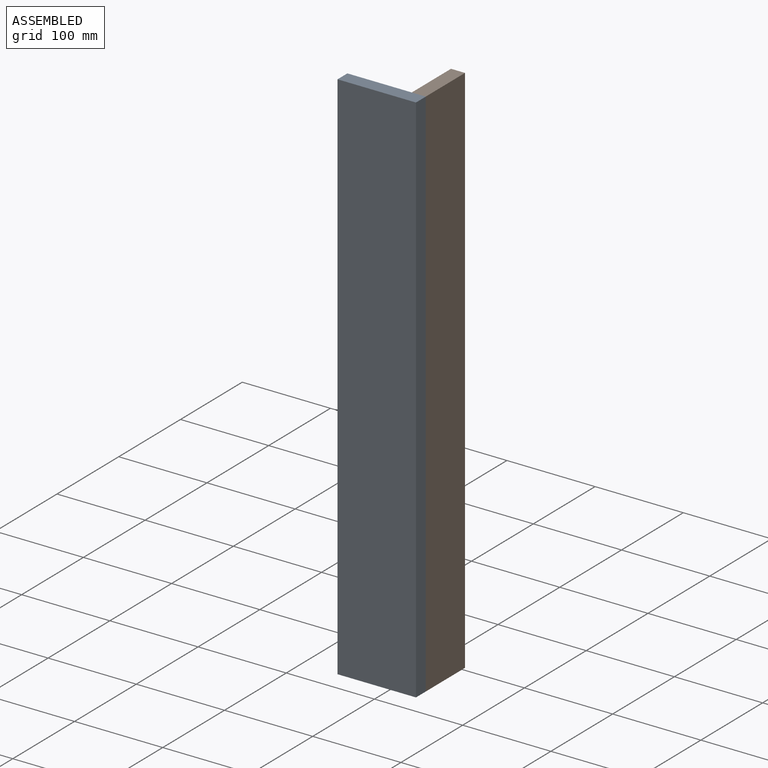
[diagram: assembled view]
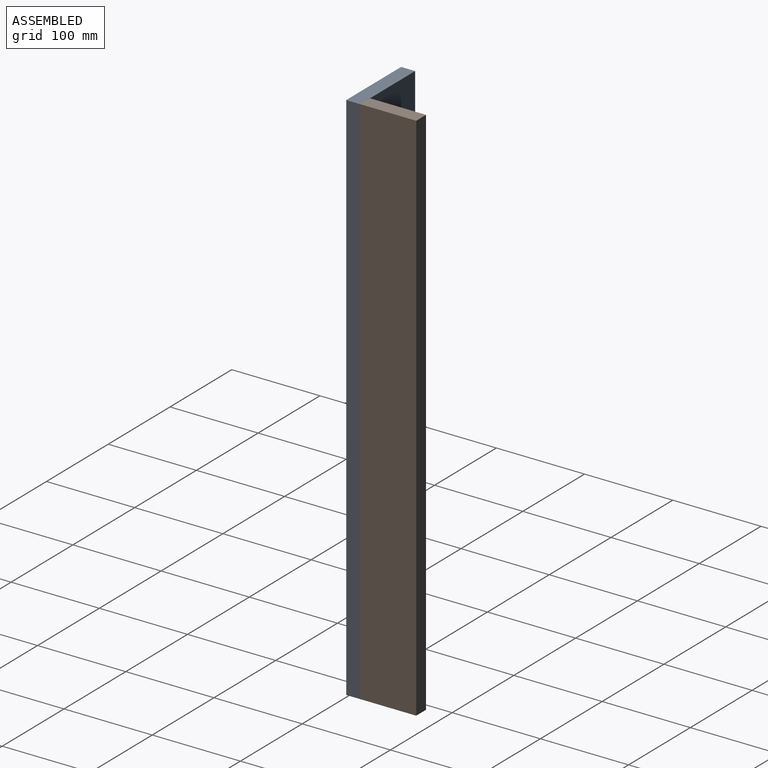
[diagram: assembled view, second angle]
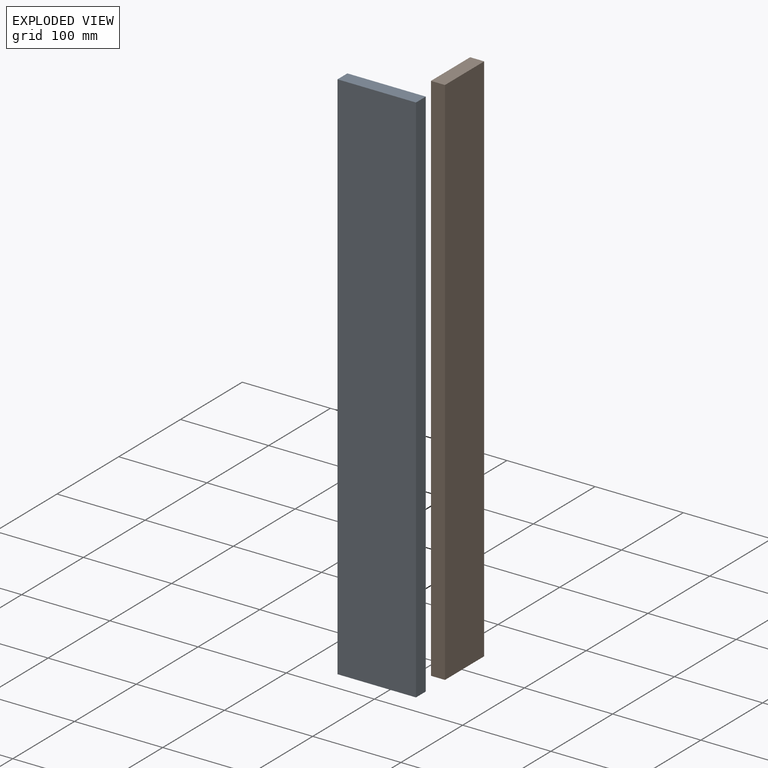
[diagram: exploded view]
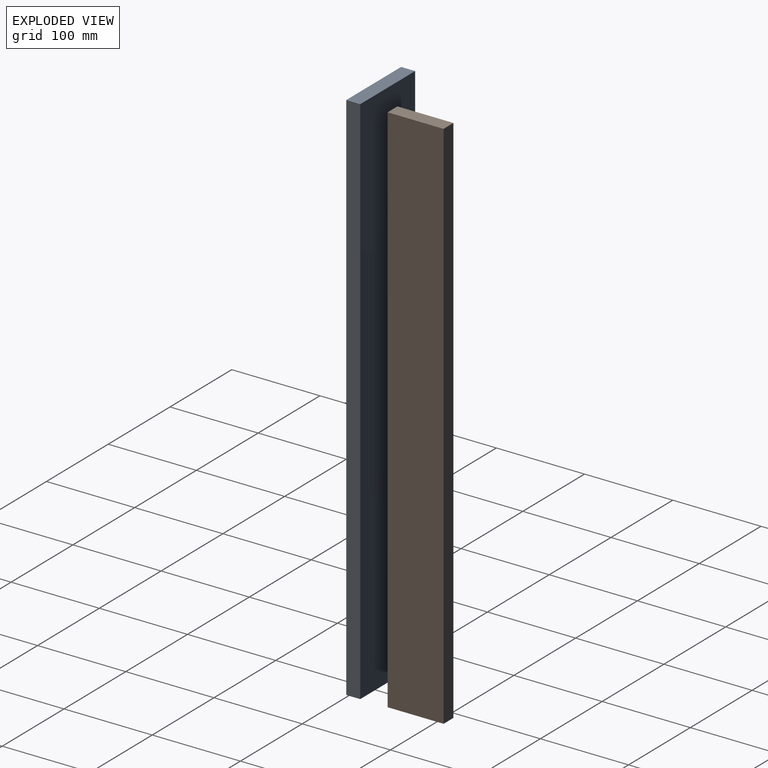
[diagram: exploded view, second angle]
ASSEMBLY  parts=2 mates=3
PART A: 6 faces, bbox 88.9x15.9x609.6 mm
  f0: plane 609.6x88.9mm, normal (0,1,0), area 54193.4mm2, adj f1,f3,f4,f5
  f1: plane 609.6x15.88mm, normal (-1,0,0), area 9677.4mm2, adj f0,f2,f4,f5
  f2: plane 609.6x88.9mm, normal (0,-1,0), area 54193.4mm2, adj f1,f3,f4,f5
  f3: plane 609.6x15.88mm, normal (1,0,0), area 9677.4mm2, adj f0,f2,f4,f5
  f4: plane 88.9x15.88mm, normal (0,0,1), area 1411.3mm2, adj f0,f1,f2,f3
  f5: plane 88.9x15.88mm, normal (0,0,-1), area 1411.3mm2, adj f0,f1,f2,f3
PART B: 6 faces, bbox 609.6x15.9x63.5 mm
  f0: plane 609.6x15.88mm, normal (0,0,1), area 9677.4mm2, adj f1,f3,f4,f5
  f1: plane 609.6x63.5mm, normal (0,-1,0), area 38709.6mm2, adj f0,f2,f4,f5
  f2: plane 609.6x15.88mm, normal (0,0,-1), area 9677.4mm2, adj f1,f3,f4,f5
  f3: plane 609.6x63.5mm, normal (0,1,0), area 38709.6mm2, adj f0,f2,f4,f5
  f4: plane 63.5x15.88mm, normal (1,0,0), area 1008.1mm2, adj f0,f1,f2,f3
  f5: plane 63.5x15.88mm, normal (-1,0,0), area 1008.1mm2, adj f0,f1,f2,f3
PLACE A t=(-447.89,-75.46,-108.97)mm
PLACE B rot(axis=(-0.58,0.58,0.58),120deg) t=(-358.99,-11.96,500.63)mm
MATE planar B.f2 <-> A.f0  axis (0,-1,0) through (-366.92,-75.46,195.83)mm
MATE planar B.f5 <-> A.f4  axis (0,0,1) through (-374.86,-43.71,500.63)mm
MATE planar B.f1 <-> A.f3  axis (1,0,0) through (-358.99,-43.71,195.83)mm
